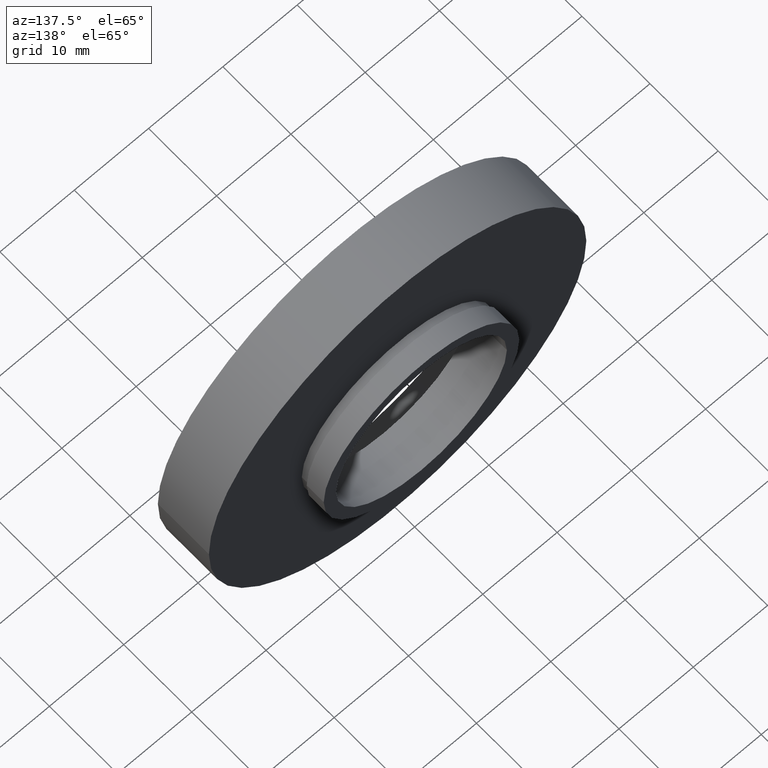
[diagram: clean part render]
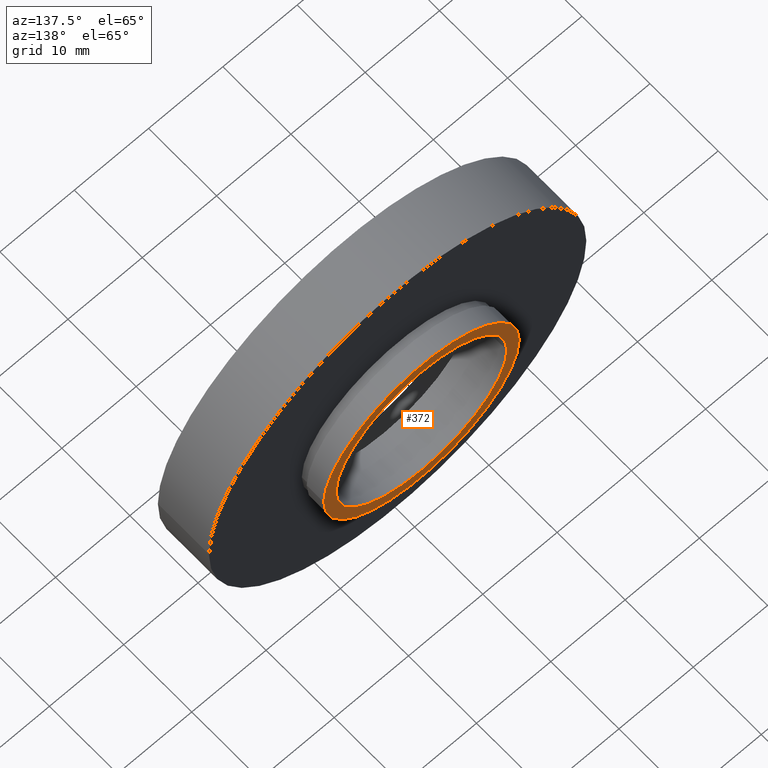
[diagram: same view with one face highlighted and labeled with its STEP entity id]
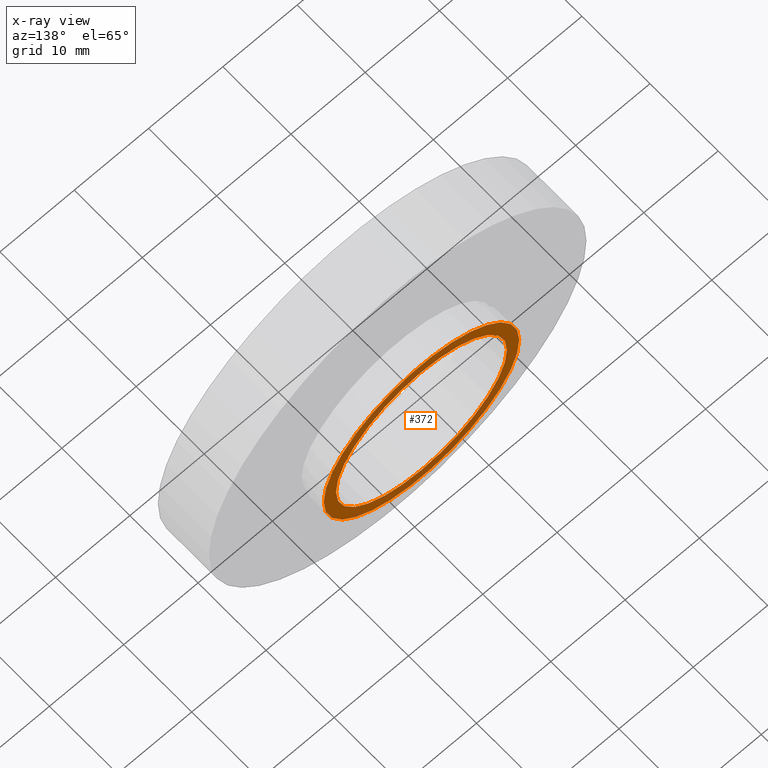
[diagram: x-ray of the same camera — body ghosted, the highlighted face saturated]
A machine part, auxiliary view. The second image highlights one B-rep face of the part: STEP entity #372.
The next image is the same camera in x-ray: the body ghosted, the highlighted face saturated — about 0% of this face is hidden behind the body in this view.
In plain terms, the highlighted planar face has unit normal (0, -1, 0).
Its self-contained STEP definition (entity closure, byte-faithful):
#14 = FACE_BOUND ( 'NONE', #276, .T. ) ;
#27 = AXIS2_PLACEMENT_3D ( 'NONE', #124, #354, #75 ) ;
#32 = DIRECTION ( 'NONE',  ( -1.000000000000000000, -1.318178933113075200E-016, 0.0000000000000000000 ) ) ;
#39 = ORIENTED_EDGE ( 'NONE', *, *, #185, .T. ) ;
#53 = DIRECTION ( 'NONE',  ( 1.000000000000000000, 1.224646799147351000E-016, 0.0000000000000000000 ) ) ;
#56 = PLANE ( 'NONE',  #326 ) ;
#75 = DIRECTION ( 'NONE',  ( -1.000000000000000000, -1.508455196501571200E-016, 0.0000000000000000000 ) ) ;
#79 = CARTESIAN_POINT ( 'NONE',  ( -11.50000000000000200, 10.99999999999999500, 0.0000000000000000000 ) ) ;
#105 = ORIENTED_EDGE ( 'NONE', *, *, #527, .F. ) ;
#113 = DIRECTION ( 'NONE',  ( -1.000000000000000000, -1.318178933113075200E-016, 0.0000000000000000000 ) ) ;
#124 = CARTESIAN_POINT ( 'NONE',  ( 7.208293393765502500E-016, 10.99999999999999600, 0.0000000000000000000 ) ) ;
#141 = CIRCLE ( 'NONE', #149, 11.50000000000000200 ) ;
#148 = CARTESIAN_POINT ( 'NONE',  ( 11.50000000000000200, 10.99999999999999800, 0.0000000000000000000 ) ) ;
#149 = AXIS2_PLACEMENT_3D ( 'NONE', #539, #389, #405 ) ;
#170 = CARTESIAN_POINT ( 'NONE',  ( 13.16000000000000200, 10.99999999999999800, 1.611635187677917100E-015 ) ) ;
#172 = AXIS2_PLACEMENT_3D ( 'NONE', #463, #558, #32 ) ;
#185 = EDGE_CURVE ( 'NONE', #199, #234, #537, .T. ) ;
#192 = DIRECTION ( 'NONE',  ( 1.224646799147351000E-016, -1.000000000000000000, 0.0000000000000000000 ) ) ;
#198 = CARTESIAN_POINT ( 'NONE',  ( 7.208293393765502500E-016, 10.99999999999999600, 0.0000000000000000000 ) ) ;
#199 = VERTEX_POINT ( 'NONE', #455 ) ;
#216 = EDGE_CURVE ( 'NONE', #234, #199, #252, .T. ) ;
#225 = CIRCLE ( 'NONE', #27, 11.50000000000000200 ) ;
#234 = VERTEX_POINT ( 'NONE', #170 ) ;
#252 = CIRCLE ( 'NONE', #172, 13.16000000000000000 ) ;
#276 = EDGE_LOOP ( 'NONE', ( #105, #574 ) ) ;
#288 = ORIENTED_EDGE ( 'NONE', *, *, #216, .T. ) ;
#299 = DIRECTION ( 'NONE',  ( -1.224646799147351000E-016, 1.000000000000000000, -0.0000000000000000000 ) ) ;
#326 = AXIS2_PLACEMENT_3D ( 'NONE', #148, #192, #53 ) ;
#354 = DIRECTION ( 'NONE',  ( -1.224646799147351000E-016, 1.000000000000000000, -0.0000000000000000000 ) ) ;
#360 = EDGE_LOOP ( 'NONE', ( #39, #288 ) ) ;
#372 = ADVANCED_FACE ( 'NONE', ( #14, #428 ), #56, .F. ) ;
#389 = DIRECTION ( 'NONE',  ( -1.224646799147351000E-016, 1.000000000000000000, -0.0000000000000000000 ) ) ;
#405 = DIRECTION ( 'NONE',  ( -1.000000000000000000, -1.508455196501571200E-016, 0.0000000000000000000 ) ) ;
#413 = EDGE_CURVE ( 'NONE', #418, #532, #225, .T. ) ;
#418 = VERTEX_POINT ( 'NONE', #589 ) ;
#428 = FACE_OUTER_BOUND ( 'NONE', #360, .T. ) ;
#440 = AXIS2_PLACEMENT_3D ( 'NONE', #198, #299, #113 ) ;
#455 = CARTESIAN_POINT ( 'NONE',  ( -13.16000000000000000, 10.99999999999999500, 0.0000000000000000000 ) ) ;
#463 = CARTESIAN_POINT ( 'NONE',  ( 7.208293393765502500E-016, 10.99999999999999600, 0.0000000000000000000 ) ) ;
#527 = EDGE_CURVE ( 'NONE', #532, #418, #141, .T. ) ;
#532 = VERTEX_POINT ( 'NONE', #79 ) ;
#537 = CIRCLE ( 'NONE', #440, 13.16000000000000000 ) ;
#539 = CARTESIAN_POINT ( 'NONE',  ( 7.208293393765502500E-016, 10.99999999999999600, 0.0000000000000000000 ) ) ;
#558 = DIRECTION ( 'NONE',  ( -1.224646799147351000E-016, 1.000000000000000000, -0.0000000000000000000 ) ) ;
#574 = ORIENTED_EDGE ( 'NONE', *, *, #413, .F. ) ;
#589 = CARTESIAN_POINT ( 'NONE',  ( 11.50000000000000200, 10.99999999999999800, 1.408343819019456600E-015 ) ) ;